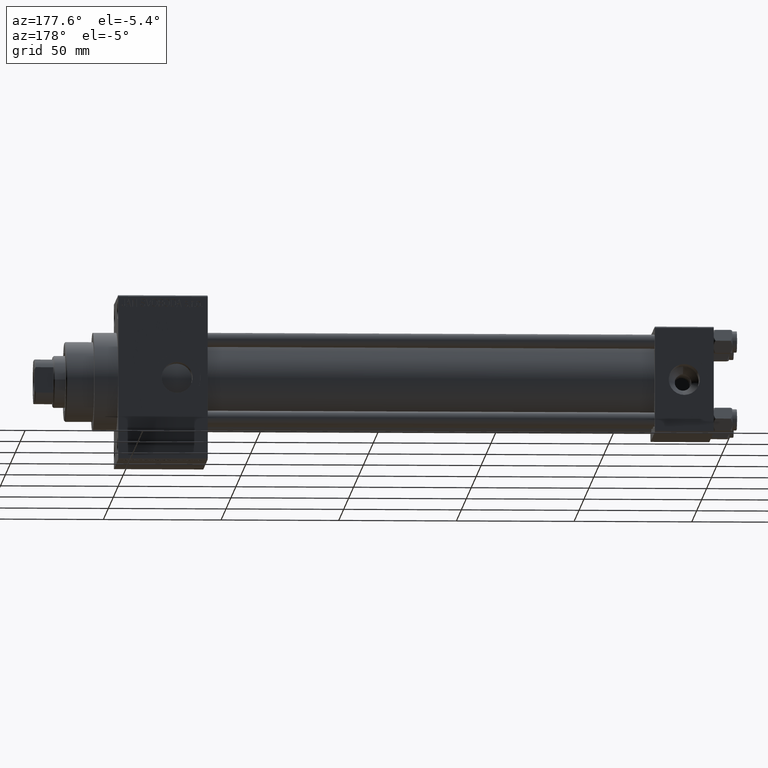
[diagram: clean part render]
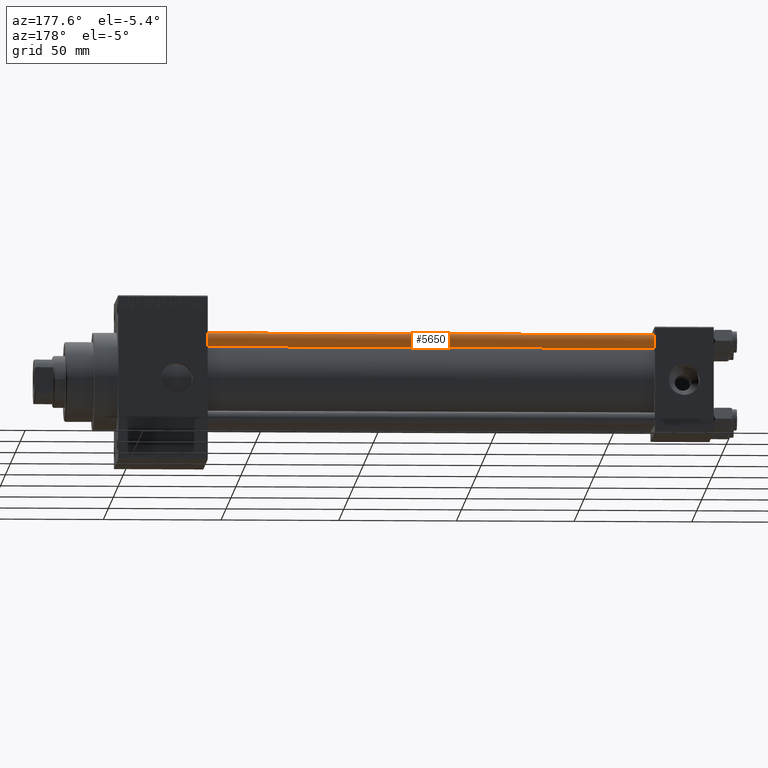
[diagram: same view with one face highlighted and labeled with its STEP entity id]
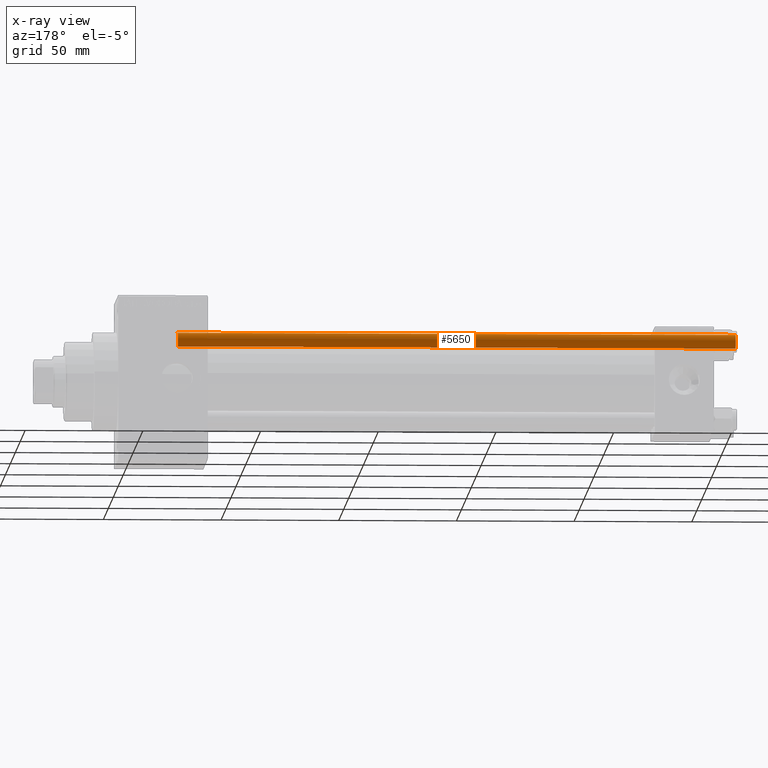
[diagram: x-ray of the same camera — body ghosted, the highlighted face saturated]
A machine part, auxiliary view. The second image highlights one B-rep face of the part: STEP entity #5650.
The next image is the same camera in x-ray: the body ghosted, the highlighted face saturated — about 0% of this face is hidden behind the body in this view.
In plain terms, the highlighted cylindrical surface (edge-blend (fillet) strip) has radius 3 mm, axis along (-1, -0, 0).
Its self-contained STEP definition (entity closure, byte-faithful):
#479 = DIRECTION ( 'NONE',  ( -0.000000000000000000, -0.000000000000000000, -1.000000000000000000 ) ) ;
#1226 = DIRECTION ( 'NONE',  ( -0.000000000000000000, -0.000000000000000000, -1.000000000000000000 ) ) ;
#3029 = EDGE_CURVE ( 'NONE', #36119, #28278, #40585, .T. ) ;
#3697 = CARTESIAN_POINT ( 'NONE',  ( 0.000000000000000000, 0.000000000000000000, 238.0000000000000000 ) ) ;
#4129 = CARTESIAN_POINT ( 'NONE',  ( 3.000000000000000444, 3.673940397442060361E-16, 237.5000000000000284 ) ) ;
#5650 = ADVANCED_FACE ( 'NONE', ( #15348 ), #22801, .T. ) ;
#5964 = CIRCLE ( 'NONE', #19451, 3.000000000000000444 ) ;
#9599 = CARTESIAN_POINT ( 'NONE',  ( 0.000000000000000000, 0.000000000000000000, 0.5000000000000281997 ) ) ;
#9895 = VECTOR ( 'NONE', #22338, 1000.000000000000000 ) ;
#9974 = DIRECTION ( 'NONE',  ( 0.000000000000000000, 0.000000000000000000, -1.000000000000000000 ) ) ;
#10799 = VECTOR ( 'NONE', #1226, 1000.000000000000000 ) ;
#12046 = EDGE_CURVE ( 'NONE', #25816, #22733, #5964, .T. ) ;
#13999 = EDGE_CURVE ( 'NONE', #36119, #22733, #38968, .T. ) ;
#15348 = FACE_OUTER_BOUND ( 'NONE', #41078, .T. ) ;
#15601 = DIRECTION ( 'NONE',  ( -1.000000000000000000, 0.000000000000000000, 0.000000000000000000 ) ) ;
#17391 = CARTESIAN_POINT ( 'NONE',  ( 3.000000000000000444, 3.673940397442060361E-16, 238.0000000000000000 ) ) ;
#19451 = AXIS2_PLACEMENT_3D ( 'NONE', #9599, #42914, #36193 ) ;
#22338 = DIRECTION ( 'NONE',  ( -0.000000000000000000, -0.000000000000000000, -1.000000000000000000 ) ) ;
#22733 = VERTEX_POINT ( 'NONE', #39937 ) ;
#22801 = CYLINDRICAL_SURFACE ( 'NONE', #48612, 3.000000000000000444 ) ;
#24636 = DIRECTION ( 'NONE',  ( 1.000000000000000000, 0.000000000000000000, 0.000000000000000000 ) ) ;
#24697 = AXIS2_PLACEMENT_3D ( 'NONE', #32344, #9974, #24636 ) ;
#25816 = VERTEX_POINT ( 'NONE', #27030 ) ;
#27030 = CARTESIAN_POINT ( 'NONE',  ( 3.000000000000000444, 3.673940397442060361E-16, 0.5000000000000281997 ) ) ;
#28278 = VERTEX_POINT ( 'NONE', #4129 ) ;
#32115 = ORIENTED_EDGE ( 'NONE', *, *, #12046, .T. ) ;
#32344 = CARTESIAN_POINT ( 'NONE',  ( 0.000000000000000000, 0.000000000000000000, 237.5000000000000284 ) ) ;
#33100 = ORIENTED_EDGE ( 'NONE', *, *, #36997, .T. ) ;
#35679 = CARTESIAN_POINT ( 'NONE',  ( -3.000000000000000444, 0.000000000000000000, 237.5000000000000284 ) ) ;
#36035 = LINE ( 'NONE', #17391, #9895 ) ;
#36119 = VERTEX_POINT ( 'NONE', #35679 ) ;
#36193 = DIRECTION ( 'NONE',  ( 1.000000000000000000, 0.000000000000000000, 0.000000000000000000 ) ) ;
#36997 = EDGE_CURVE ( 'NONE', #28278, #25816, #36035, .T. ) ;
#38968 = LINE ( 'NONE', #42444, #10799 ) ;
#39937 = CARTESIAN_POINT ( 'NONE',  ( -3.000000000000000444, 0.000000000000000000, 0.5000000000000281997 ) ) ;
#40585 = CIRCLE ( 'NONE', #24697, 3.000000000000000444 ) ;
#41078 = EDGE_LOOP ( 'NONE', ( #48413, #33100, #32115, #47896 ) ) ;
#42444 = CARTESIAN_POINT ( 'NONE',  ( -3.000000000000000444, 0.000000000000000000, 238.0000000000000000 ) ) ;
#42914 = DIRECTION ( 'NONE',  ( -0.000000000000000000, -0.000000000000000000, 1.000000000000000000 ) ) ;
#47896 = ORIENTED_EDGE ( 'NONE', *, *, #13999, .F. ) ;
#48413 = ORIENTED_EDGE ( 'NONE', *, *, #3029, .T. ) ;
#48612 = AXIS2_PLACEMENT_3D ( 'NONE', #3697, #479, #15601 ) ;